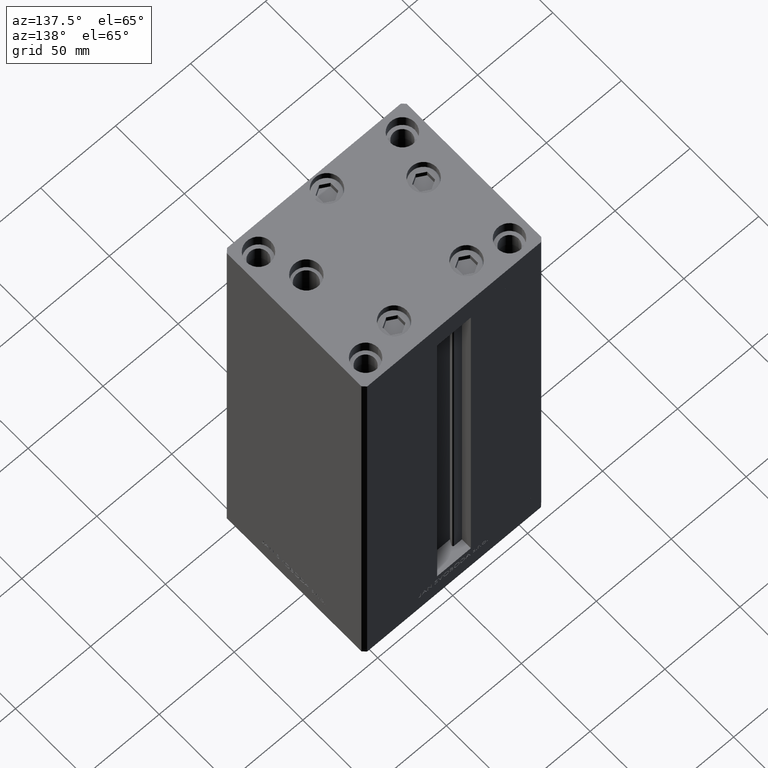
[diagram: clean part render]
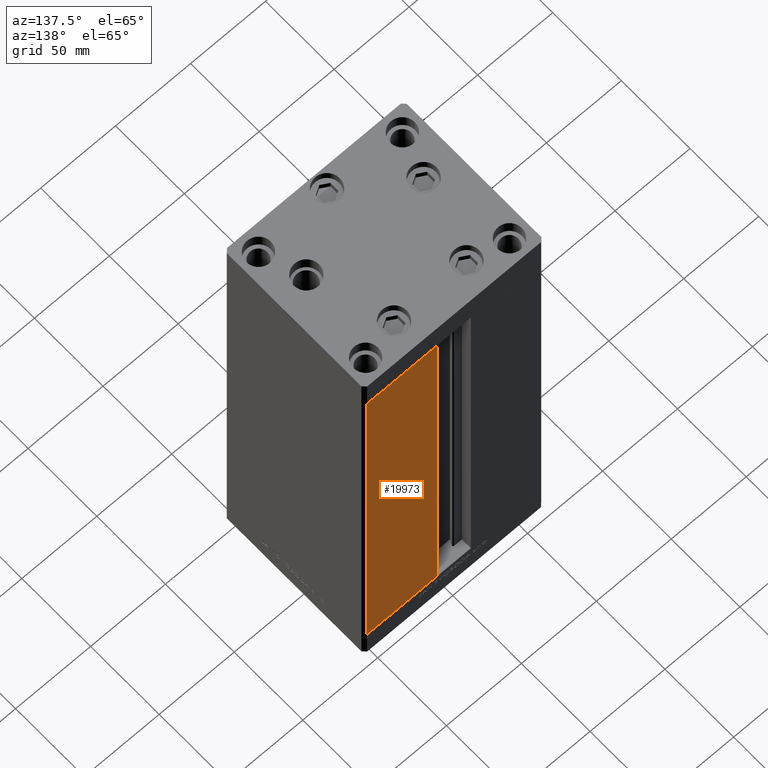
[diagram: same view with one face highlighted and labeled with its STEP entity id]
A machine part, auxiliary view. The second image highlights one B-rep face of the part: STEP entity #19973.
In plain terms, the highlighted planar face has unit normal (-0, -1, 0).
Its self-contained STEP definition (entity closure, byte-faithful):
#273 = LINE ( 'NONE', #39034, #43444 ) ;
#494 = VERTEX_POINT ( 'NONE', #11355 ) ;
#4107 = CARTESIAN_POINT ( 'NONE',  ( -11.25000000000000178, 51.00000000000000000, 0.000000000000000000 ) ) ;
#9299 = PLANE ( 'NONE',  #17996 ) ;
#11355 = CARTESIAN_POINT ( 'NONE',  ( 57.99999999999999289, 51.00000000000000711, 0.000000000000000000 ) ) ;
#12365 = ORIENTED_EDGE ( 'NONE', *, *, #21814, .T. ) ;
#13181 = DIRECTION ( 'NONE',  ( -0.000000000000000000, -0.000000000000000000, 1.000000000000000000 ) ) ;
#13644 = VERTEX_POINT ( 'NONE', #22240 ) ;
#16907 = DIRECTION ( 'NONE',  ( 1.000000000000000000, 0.000000000000000000, 0.000000000000000000 ) ) ;
#17996 = AXIS2_PLACEMENT_3D ( 'NONE', #31918, #47082, #20973 ) ;
#18269 = EDGE_LOOP ( 'NONE', ( #35048, #39408, #47143, #12365 ) ) ;
#19973 = ADVANCED_FACE ( 'NONE', ( #44089 ), #9299, .F. ) ;
#20150 = DIRECTION ( 'NONE',  ( -0.000000000000000000, -0.000000000000000000, -1.000000000000000000 ) ) ;
#20973 = DIRECTION ( 'NONE',  ( 1.000000000000000000, -1.484255380514915423E-16, 0.000000000000000000 ) ) ;
#21814 = EDGE_CURVE ( 'NONE', #39587, #494, #273, .T. ) ;
#22240 = CARTESIAN_POINT ( 'NONE',  ( 11.24999999999999467, 51.00000000000000000, 268.5000000000000000 ) ) ;
#22322 = EDGE_CURVE ( 'NONE', #27927, #13644, #26874, .T. ) ;
#23325 = CARTESIAN_POINT ( 'NONE',  ( 57.99999999999999289, 51.00000000000000711, 268.5000000000000000 ) ) ;
#26220 = VECTOR ( 'NONE', #16907, 1000.000000000000000 ) ;
#26699 = EDGE_CURVE ( 'NONE', #494, #27927, #33452, .T. ) ;
#26874 = LINE ( 'NONE', #43259, #38683 ) ;
#27927 = VERTEX_POINT ( 'NONE', #37555 ) ;
#29226 = EDGE_CURVE ( 'NONE', #13644, #39587, #39760, .T. ) ;
#31918 = CARTESIAN_POINT ( 'NONE',  ( -11.25000000000000178, 51.00000000000000000, 268.5000000000000000 ) ) ;
#33452 = LINE ( 'NONE', #4107, #48366 ) ;
#35048 = ORIENTED_EDGE ( 'NONE', *, *, #26699, .T. ) ;
#37555 = CARTESIAN_POINT ( 'NONE',  ( 11.25000000000000178, 51.00000000000000000, 0.000000000000000000 ) ) ;
#37671 = DIRECTION ( 'NONE',  ( -1.000000000000000000, 1.484255380514915423E-16, 0.000000000000000000 ) ) ;
#38683 = VECTOR ( 'NONE', #13181, 1000.000000000000000 ) ;
#39034 = CARTESIAN_POINT ( 'NONE',  ( 57.99999999999999289, 51.00000000000000711, 268.5000000000000000 ) ) ;
#39408 = ORIENTED_EDGE ( 'NONE', *, *, #22322, .T. ) ;
#39517 = CARTESIAN_POINT ( 'NONE',  ( -11.25000000000000178, 51.00000000000000000, 268.5000000000000000 ) ) ;
#39587 = VERTEX_POINT ( 'NONE', #23325 ) ;
#39760 = LINE ( 'NONE', #39517, #26220 ) ;
#43259 = CARTESIAN_POINT ( 'NONE',  ( 11.25000000000000178, 51.00000000000000000, 0.000000000000000000 ) ) ;
#43444 = VECTOR ( 'NONE', #20150, 1000.000000000000000 ) ;
#44089 = FACE_OUTER_BOUND ( 'NONE', #18269, .T. ) ;
#47082 = DIRECTION ( 'NONE',  ( -1.484255380514915423E-16, -1.000000000000000000, 0.000000000000000000 ) ) ;
#47143 = ORIENTED_EDGE ( 'NONE', *, *, #29226, .T. ) ;
#48366 = VECTOR ( 'NONE', #37671, 1000.000000000000000 ) ;